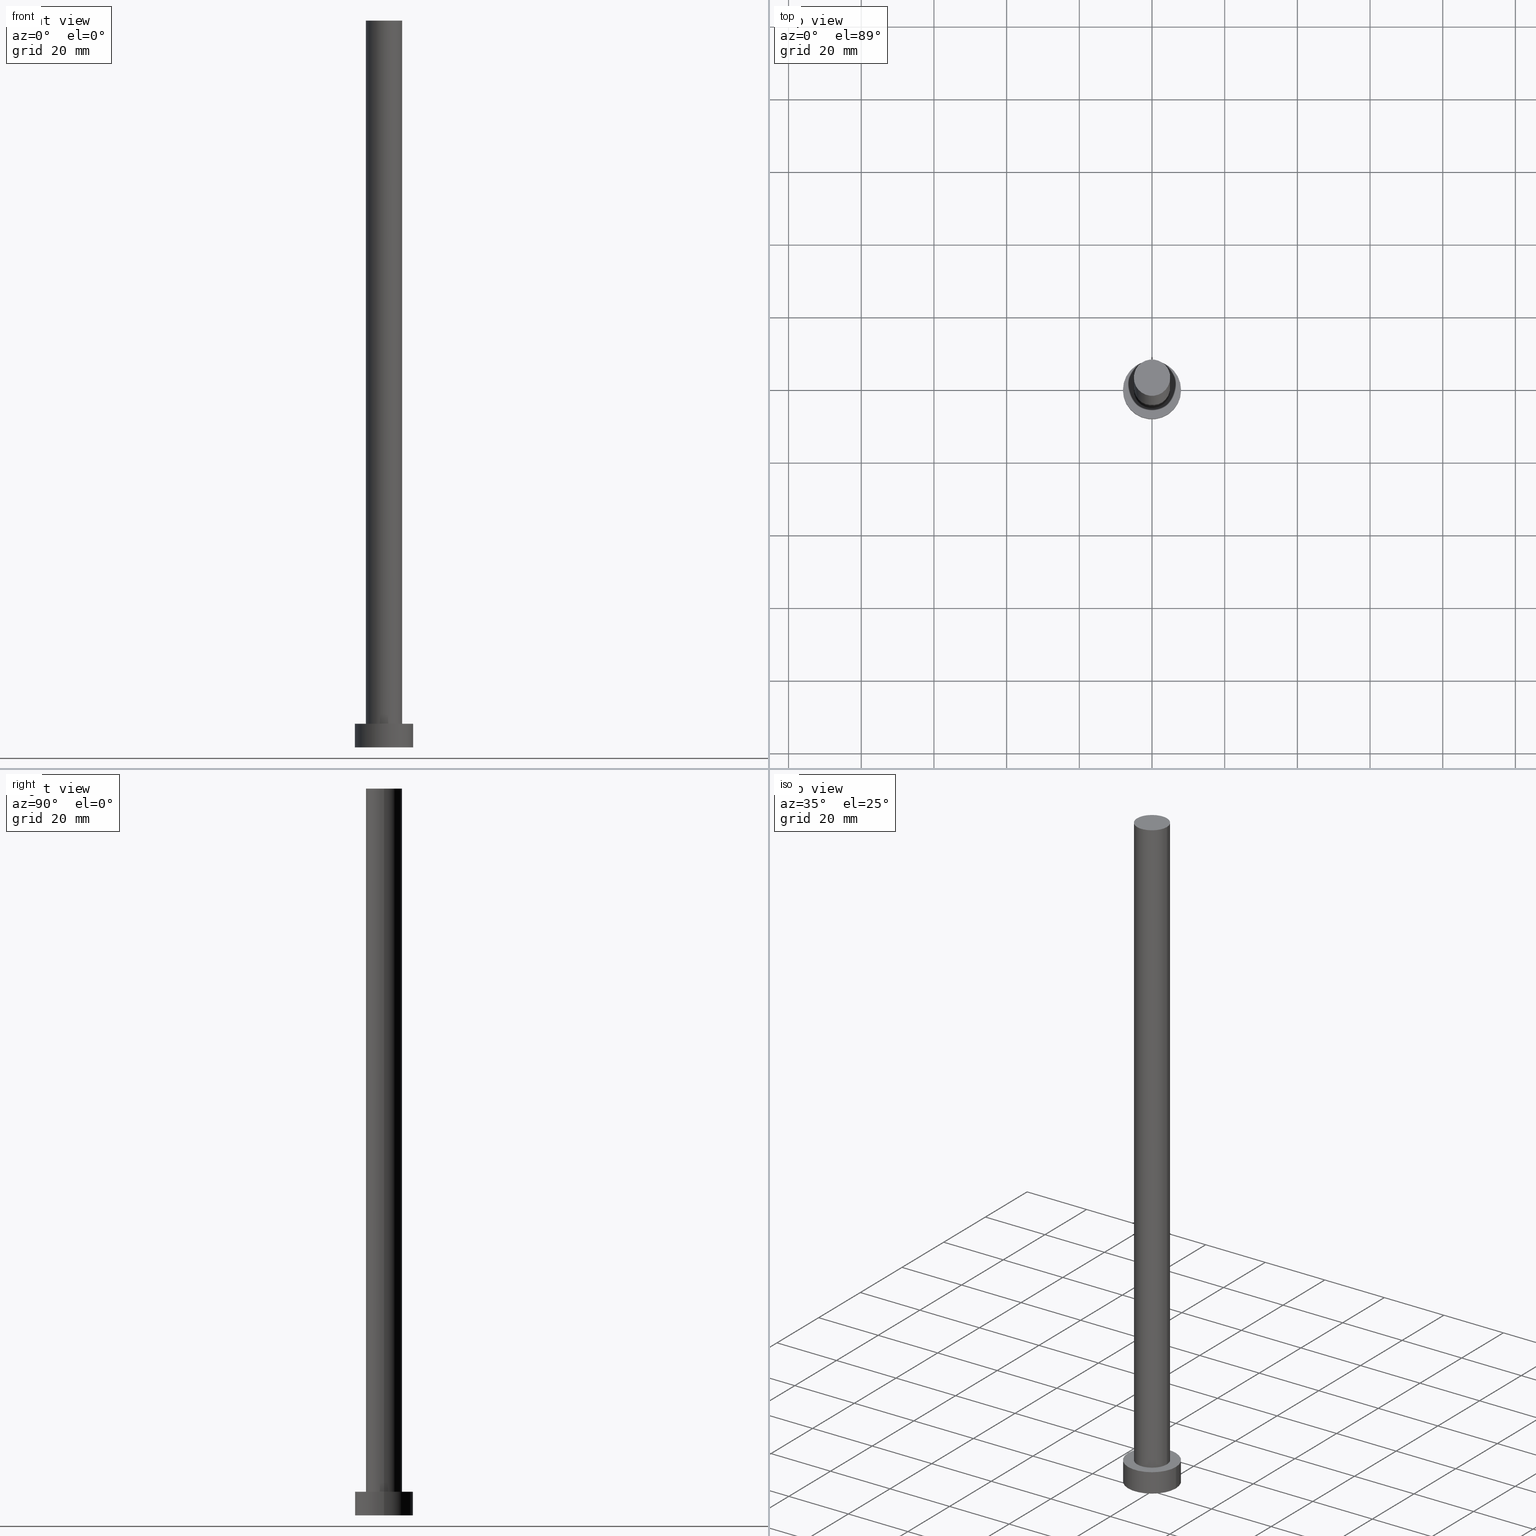
[diagram: canonical four-view strip — front | top / right | iso, engineering-drawing reading convention]
A machine part, canonical four-view strip (front | top / right | iso — engineering-drawing reading convention). The complete STEP part file that produces these views, byte-faithful:
ISO-10303-21;
HEADER;
FILE_DESCRIPTION (( 'STEP AP203' ),
    '1' );
FILE_NAME ('220f.STEP',
    '2023-02-13T13:10:08',
    ( '' ),
    ( '' ),
    'SwSTEP 2.0',
    'SolidWorks 2019',
    '' );
FILE_SCHEMA (( 'CONFIG_CONTROL_DESIGN' ));
ENDSEC;

DATA;
#1 = APPLICATION_PROTOCOL_DEFINITION ( 'international standard', 'config_control_design', 1994, #128 ) ;
#2 = VERTEX_POINT ( 'NONE', #132 ) ;
#3 = DIRECTION ( 'NONE',  ( 1.000000000000000000, 0.000000000000000000, 0.000000000000000000 ) ) ;
#4 = CARTESIAN_POINT ( 'NONE',  ( 5.000000000000000888, 6.123233995736767268E-16, 200.0000000000000000 ) ) ;
#5 = CIRCLE ( 'NONE', #201, 8.000000000000000000 ) ;
#6 = VERTEX_POINT ( 'NONE', #18 ) ;
#7 = CARTESIAN_POINT ( 'NONE',  ( 8.000000000000000000, 9.797174393178823685E-16, 6.500000000000000000 ) ) ;
#8 = EDGE_LOOP ( 'NONE', ( #227, #49, #249, #108 ) ) ;
#9 = DATE_AND_TIME ( #248, #191 ) ;
#10 = CARTESIAN_POINT ( 'NONE',  ( 0.000000000000000000, 0.000000000000000000, 6.500000000000000000 ) ) ;
#11 = PERSON_AND_ORGANIZATION ( #87, #92 ) ;
#12 = FACE_OUTER_BOUND ( 'NONE', #38, .T. ) ;
#13 = DIRECTION ( 'NONE',  ( -1.000000000000000000, 0.000000000000000000, 0.000000000000000000 ) ) ;
#14 = DIRECTION ( 'NONE',  ( -0.000000000000000000, -0.000000000000000000, -1.000000000000000000 ) ) ;
#15 = EDGE_CURVE ( 'NONE', #206, #69, #127, .T. ) ;
#16 = LOCAL_TIME ( 14, 10, 8.000000000000000000, #77 ) ;
#17 = ADVANCED_FACE ( 'NONE', ( #172, #111 ), #151, .T. ) ;
#18 = CARTESIAN_POINT ( 'NONE',  ( 8.000000000000000000, 9.797174393178823685E-16, 6.500000000000000000 ) ) ;
#19 = ORIENTED_EDGE ( 'NONE', *, *, #63, .F. ) ;
#20 = SECURITY_CLASSIFICATION_LEVEL ( 'unclassified' ) ;
#21 = CARTESIAN_POINT ( 'NONE',  ( 0.000000000000000000, 0.000000000000000000, 6.500000000000000000 ) ) ;
#22 = ORIENTED_EDGE ( 'NONE', *, *, #55, .T. ) ;
#23 = LINE ( 'NONE', #7, #33 ) ;
#24 = EDGE_CURVE ( 'NONE', #6, #206, #115, .T. ) ;
#25 = CIRCLE ( 'NONE', #169, 5.000000000000000888 ) ;
#26 = ORIENTED_EDGE ( 'NONE', *, *, #36, .F. ) ;
#27 = CALENDAR_DATE ( 2023, 13, 2 ) ;
#28 = EDGE_LOOP ( 'NONE', ( #46, #19, #243, #147 ) ) ;
#29 = CALENDAR_DATE ( 2023, 13, 2 ) ;
#30 = DIRECTION ( 'NONE',  ( 0.000000000000000000, 0.000000000000000000, 1.000000000000000000 ) ) ;
#31 = APPROVAL_DATE_TIME ( #9, #203 ) ;
#32 = DIRECTION ( 'NONE',  ( 1.000000000000000000, 0.000000000000000000, -0.000000000000000000 ) ) ;
#33 = VECTOR ( 'NONE', #71, 1000.000000000000000 ) ;
#34 = APPLICATION_PROTOCOL_DEFINITION ( 'international standard', 'config_control_design', 1994, #101 ) ;
#35 = CYLINDRICAL_SURFACE ( 'NONE', #228, 5.000000000000000888 ) ;
#36 = EDGE_CURVE ( 'NONE', #2, #41, #255, .T. ) ;
#37 = PRODUCT_DEFINITION_FORMATION_WITH_SPECIFIED_SOURCE ( 'LIBOVOLN�', '', #181, .NOT_KNOWN. ) ;
#38 = EDGE_LOOP ( 'NONE', ( #166, #149 ) ) ;
#39 =( GEOMETRIC_REPRESENTATION_CONTEXT ( 3 ) GLOBAL_UNCERTAINTY_ASSIGNED_CONTEXT ( ( #130 ) ) GLOBAL_UNIT_ASSIGNED_CONTEXT ( ( #84, #140, #138 ) ) REPRESENTATION_CONTEXT ( 'NONE', 'WORKASPACE' ) );
#40 = SHAPE_DEFINITION_REPRESENTATION ( #98, #252 ) ;
#41 = VERTEX_POINT ( 'NONE', #171 ) ;
#42 = CC_DESIGN_APPROVAL ( #189, ( #194 ) ) ;
#43 = ORIENTED_EDGE ( 'NONE', *, *, #179, .T. ) ;
#44 = DATE_AND_TIME ( #27, #16 ) ;
#45 = DIRECTION ( 'NONE',  ( 0.000000000000000000, 0.000000000000000000, 1.000000000000000000 ) ) ;
#46 = ORIENTED_EDGE ( 'NONE', *, *, #179, .F. ) ;
#47 = APPROVAL_DATE_TIME ( #253, #189 ) ;
#48 = DIRECTION ( 'NONE',  ( -1.000000000000000000, 0.000000000000000000, 0.000000000000000000 ) ) ;
#49 = ORIENTED_EDGE ( 'NONE', *, *, #68, .F. ) ;
#50 = DESIGN_CONTEXT ( 'detailed design', #128, 'design' ) ;
#51 = PERSON_AND_ORGANIZATION ( #87, #92 ) ;
#52 = VERTEX_POINT ( 'NONE', #66 ) ;
#53 = PLANE ( 'NONE',  #60 ) ;
#54 = FACE_OUTER_BOUND ( 'NONE', #95, .T. ) ;
#55 = EDGE_CURVE ( 'NONE', #52, #186, #25, .T. ) ;
#56 = CYLINDRICAL_SURFACE ( 'NONE', #254, 8.000000000000000000 ) ;
#57 = AXIS2_PLACEMENT_3D ( 'NONE', #110, #157, #150 ) ;
#58 = AXIS2_PLACEMENT_3D ( 'NONE', #200, #14, #232 ) ;
#59 = APPROVAL_STATUS ( 'not_yet_approved' ) ;
#60 = AXIS2_PLACEMENT_3D ( 'NONE', #133, #30, #177 ) ;
#61 = APPROVAL_PERSON_ORGANIZATION ( #240, #189, #144 ) ;
#62 = APPROVAL_STATUS ( 'not_yet_approved' ) ;
#63 = EDGE_CURVE ( 'NONE', #41, #2, #184, .T. ) ;
#64 = CARTESIAN_POINT ( 'NONE',  ( 0.000000000000000000, 0.000000000000000000, 6.500000000000000000 ) ) ;
#65 = DIRECTION ( 'NONE',  ( -0.000000000000000000, -0.000000000000000000, -1.000000000000000000 ) ) ;
#66 = CARTESIAN_POINT ( 'NONE',  ( 5.000000000000000888, 6.123233995736767268E-16, 6.500000000000000000 ) ) ;
#67 = CC_DESIGN_APPROVAL ( #203, ( #37 ) ) ;
#68 = EDGE_CURVE ( 'NONE', #206, #6, #214, .T. ) ;
#69 = VERTEX_POINT ( 'NONE', #76 ) ;
#70 = ORIENTED_EDGE ( 'NONE', *, *, #220, .T. ) ;
#71 = DIRECTION ( 'NONE',  ( -0.000000000000000000, -0.000000000000000000, -1.000000000000000000 ) ) ;
#72 = ORIENTED_EDGE ( 'NONE', *, *, #146, .T. ) ;
#73 = PERSON_AND_ORGANIZATION_ROLE ( 'creator' ) ;
#74 = CARTESIAN_POINT ( 'NONE',  ( 0.000000000000000000, 0.000000000000000000, 6.500000000000000000 ) ) ;
#75 = AXIS2_PLACEMENT_3D ( 'NONE', #21, #178, #188 ) ;
#76 = CARTESIAN_POINT ( 'NONE',  ( -8.000000000000000000, 0.000000000000000000, 0.000000000000000000 ) ) ;
#77 = COORDINATED_UNIVERSAL_TIME_OFFSET ( 1, 0, .AHEAD. ) ;
#78 = ADVANCED_FACE ( 'NONE', ( #116 ), #56, .T. ) ;
#79 = CYLINDRICAL_SURFACE ( 'NONE', #175, 8.000000000000000000 ) ;
#80 = AXIS2_PLACEMENT_3D ( 'NONE', #93, #131, #3 ) ;
#81 = LOCAL_TIME ( 14, 10, 8.000000000000000000, #237 ) ;
#82 = EDGE_CURVE ( 'NONE', #41, #186, #97, .T. ) ;
#83 = VECTOR ( 'NONE', #205, 1000.000000000000000 ) ;
#84 =( LENGTH_UNIT ( ) NAMED_UNIT ( * ) SI_UNIT ( .MILLI., .METRE. ) );
#85 = ADVANCED_FACE ( 'NONE', ( #230 ), #53, .T. ) ;
#86 = CIRCLE ( 'NONE', #75, 5.000000000000000888 ) ;
#87 = PERSON ( 'NEUR�EN�', 'NEUR�EN�', 'NEUR�EN�', ('NEUR�EN�'), ('NEUR�EN�'), ('NEUR�EN�') ) ;
#88 = ORIENTED_EDGE ( 'NONE', *, *, #24, .F. ) ;
#89 = DIRECTION ( 'NONE',  ( 0.000000000000000000, 0.000000000000000000, 1.000000000000000000 ) ) ;
#90 = COORDINATED_UNIVERSAL_TIME_OFFSET ( 1, 0, .AHEAD. ) ;
#91 = EDGE_LOOP ( 'NONE', ( #202, #129 ) ) ;
#92 = ORGANIZATION ( 'NEUR�EN�', 'NEUR�EN�', '' ) ;
#93 = CARTESIAN_POINT ( 'NONE',  ( 0.000000000000000000, 0.000000000000000000, 6.500000000000000000 ) ) ;
#94 = PLANE ( 'NONE',  #183 ) ;
#95 = EDGE_LOOP ( 'NONE', ( #88, #70, #72, #190 ) ) ;
#96 = DATE_TIME_ROLE ( 'creation_date' ) ;
#97 = LINE ( 'NONE', #174, #182 ) ;
#98 = PRODUCT_DEFINITION_SHAPE ( 'NONE', 'NONE',  #194 ) ;
#99 = CLOSED_SHELL ( 'NONE', ( #250, #211, #78, #17, #231, #120, #85 ) ) ;
#100 = CC_DESIGN_SECURITY_CLASSIFICATION ( #163, ( #37 ) ) ;
#101 = APPLICATION_CONTEXT ( 'configuration controlled 3d designs of mechanical parts and assemblies' ) ;
#102 = DATE_AND_TIME ( #238, #81 ) ;
#103 = CC_DESIGN_PERSON_AND_ORGANIZATION_ASSIGNMENT ( #113, #195, ( #163 ) ) ;
#104 = PERSON_AND_ORGANIZATION ( #87, #92 ) ;
#105 = LOCAL_TIME ( 14, 10, 8.000000000000000000, #90 ) ;
#106 = DIRECTION ( 'NONE',  ( 1.000000000000000000, 0.000000000000000000, 0.000000000000000000 ) ) ;
#107 = DATE_AND_TIME ( #167, #105 ) ;
#108 = ORIENTED_EDGE ( 'NONE', *, *, #217, .T. ) ;
#109 = CARTESIAN_POINT ( 'NONE',  ( 0.000000000000000000, 0.000000000000000000, 200.0000000000000000 ) ) ;
#110 = CARTESIAN_POINT ( 'NONE',  ( 0.000000000000000000, 0.000000000000000000, 0.000000000000000000 ) ) ;
#111 = FACE_OUTER_BOUND ( 'NONE', #91, .T. ) ;
#112 = CARTESIAN_POINT ( 'NONE',  ( -8.000000000000000000, 0.000000000000000000, 6.500000000000000000 ) ) ;
#113 = PERSON_AND_ORGANIZATION ( #87, #92 ) ;
#114 = FACE_OUTER_BOUND ( 'NONE', #247, .T. ) ;
#115 = CIRCLE ( 'NONE', #80, 8.000000000000000000 ) ;
#116 = FACE_OUTER_BOUND ( 'NONE', #8, .T. ) ;
#117 = CARTESIAN_POINT ( 'NONE',  ( 0.000000000000000000, 0.000000000000000000, 6.500000000000000000 ) ) ;
#118 = APPROVAL_PERSON_ORGANIZATION ( #119, #239, #185 ) ;
#119 = PERSON_AND_ORGANIZATION ( #87, #92 ) ;
#120 = ADVANCED_FACE ( 'NONE', ( #180 ), #35, .T. ) ;
#121 = DIRECTION ( 'NONE',  ( 1.000000000000000000, 0.000000000000000000, 0.000000000000000000 ) ) ;
#122 = VERTEX_POINT ( 'NONE', #176 ) ;
#123 = CIRCLE ( 'NONE', #57, 8.000000000000000000 ) ;
#124 = ORIENTED_EDGE ( 'NONE', *, *, #55, .F. ) ;
#125 = VECTOR ( 'NONE', #246, 1000.000000000000000 ) ;
#126 = CARTESIAN_POINT ( 'NONE',  ( 0.000000000000000000, 0.000000000000000000, 0.000000000000000000 ) ) ;
#127 = LINE ( 'NONE', #245, #83 ) ;
#128 = APPLICATION_CONTEXT ( 'configuration controlled 3d designs of mechanical parts and assemblies' ) ;
#129 = ORIENTED_EDGE ( 'NONE', *, *, #24, .T. ) ;
#130 = UNCERTAINTY_MEASURE_WITH_UNIT (LENGTH_MEASURE( 1.000000000000000082E-05 ), #84, 'distance_accuracy_value', 'NONE');
#131 = DIRECTION ( 'NONE',  ( 0.000000000000000000, 0.000000000000000000, 1.000000000000000000 ) ) ;
#132 = CARTESIAN_POINT ( 'NONE',  ( 5.000000000000000888, 6.123233995736767268E-16, 200.0000000000000000 ) ) ;
#133 = CARTESIAN_POINT ( 'NONE',  ( 0.000000000000000000, 0.000000000000000000, 200.0000000000000000 ) ) ;
#134 = APPROVAL_ROLE ( '' ) ;
#135 = MANIFOLD_SOLID_BREP ( 'P�idat vysunut�m3', #99 ) ;
#136 = CARTESIAN_POINT ( 'NONE',  ( 0.000000000000000000, 0.000000000000000000, 0.000000000000000000 ) ) ;
#137 = EDGE_CURVE ( 'NONE', #186, #52, #86, .T. ) ;
#138 =( NAMED_UNIT ( * ) SI_UNIT ( $, .STERADIAN. ) SOLID_ANGLE_UNIT ( ) );
#139 = DATE_TIME_ROLE ( 'classification_date' ) ;
#140 =( NAMED_UNIT ( * ) PLANE_ANGLE_UNIT ( ) SI_UNIT ( $, .RADIAN. ) );
#141 = COORDINATED_UNIVERSAL_TIME_OFFSET ( 1, 0, .AHEAD. ) ;
#142 = DIRECTION ( 'NONE',  ( 1.000000000000000000, 0.000000000000000000, 0.000000000000000000 ) ) ;
#143 = MECHANICAL_CONTEXT ( 'NONE', #101, 'mechanical' ) ;
#144 = APPROVAL_ROLE ( '' ) ;
#145 = DIRECTION ( 'NONE',  ( 0.000000000000000000, 0.000000000000000000, 1.000000000000000000 ) ) ;
#146 = EDGE_CURVE ( 'NONE', #122, #69, #123, .T. ) ;
#147 = ORIENTED_EDGE ( 'NONE', *, *, #137, .T. ) ;
#148 = AXIS2_PLACEMENT_3D ( 'NONE', #109, #192, #121 ) ;
#149 = ORIENTED_EDGE ( 'NONE', *, *, #146, .F. ) ;
#150 = DIRECTION ( 'NONE',  ( 1.000000000000000000, 0.000000000000000000, 0.000000000000000000 ) ) ;
#151 = PLANE ( 'NONE',  #219 ) ;
#152 = PERSON_AND_ORGANIZATION ( #87, #92 ) ;
#153 = ORIENTED_EDGE ( 'NONE', *, *, #63, .T. ) ;
#154 = CARTESIAN_POINT ( 'NONE',  ( 0.000000000000000000, 0.000000000000000000, 0.000000000000000000 ) ) ;
#155 = APPROVAL_STATUS ( 'not_yet_approved' ) ;
#156 = DIRECTION ( 'NONE',  ( -1.000000000000000000, 0.000000000000000000, 0.000000000000000000 ) ) ;
#157 = DIRECTION ( 'NONE',  ( 0.000000000000000000, 0.000000000000000000, 1.000000000000000000 ) ) ;
#158 = CC_DESIGN_PERSON_AND_ORGANIZATION_ASSIGNMENT ( #51, #251, ( #37 ) ) ;
#159 = LOCAL_TIME ( 14, 10, 8.000000000000000000, #141 ) ;
#160 = APPROVAL_DATE_TIME ( #102, #239 ) ;
#161 = DIRECTION ( 'NONE',  ( 0.000000000000000000, 0.000000000000000000, 1.000000000000000000 ) ) ;
#162 = AXIS2_PLACEMENT_3D ( 'NONE', #204, #89, #106 ) ;
#163 = SECURITY_CLASSIFICATION ( '', '', #20 ) ;
#164 = PERSON_AND_ORGANIZATION_ROLE ( 'design_owner' ) ;
#165 = CC_DESIGN_PERSON_AND_ORGANIZATION_ASSIGNMENT ( #11, #212, ( #37 ) ) ;
#166 = ORIENTED_EDGE ( 'NONE', *, *, #217, .F. ) ;
#167 = CALENDAR_DATE ( 2023, 13, 2 ) ;
#168 = DIRECTION ( 'NONE',  ( 0.000000000000000000, 0.000000000000000000, 1.000000000000000000 ) ) ;
#169 = AXIS2_PLACEMENT_3D ( 'NONE', #187, #168, #208 ) ;
#170 = CC_DESIGN_DATE_AND_TIME_ASSIGNMENT ( #107, #139, ( #163 ) ) ;
#171 = CARTESIAN_POINT ( 'NONE',  ( -5.000000000000000888, 0.000000000000000000, 200.0000000000000000 ) ) ;
#172 = FACE_BOUND ( 'NONE', #222, .T. ) ;
#173 = LINE ( 'NONE', #4, #125 ) ;
#174 = CARTESIAN_POINT ( 'NONE',  ( -5.000000000000000888, 0.000000000000000000, 200.0000000000000000 ) ) ;
#175 = AXIS2_PLACEMENT_3D ( 'NONE', #74, #226, #48 ) ;
#176 = CARTESIAN_POINT ( 'NONE',  ( 8.000000000000000000, 9.797174393178823685E-16, 0.000000000000000000 ) ) ;
#177 = DIRECTION ( 'NONE',  ( 1.000000000000000000, 0.000000000000000000, -0.000000000000000000 ) ) ;
#178 = DIRECTION ( 'NONE',  ( 0.000000000000000000, 0.000000000000000000, 1.000000000000000000 ) ) ;
#179 = EDGE_CURVE ( 'NONE', #2, #52, #173, .T. ) ;
#180 = FACE_OUTER_BOUND ( 'NONE', #28, .T. ) ;
#181 = PRODUCT ( '220f', '220f', '', ( #143 ) ) ;
#182 = VECTOR ( 'NONE', #198, 1000.000000000000000 ) ;
#183 = AXIS2_PLACEMENT_3D ( 'NONE', #136, #213, #32 ) ;
#184 = CIRCLE ( 'NONE', #148, 5.000000000000000888 ) ;
#185 = APPROVAL_ROLE ( '' ) ;
#186 = VERTEX_POINT ( 'NONE', #223 ) ;
#187 = CARTESIAN_POINT ( 'NONE',  ( 0.000000000000000000, 0.000000000000000000, 6.500000000000000000 ) ) ;
#188 = DIRECTION ( 'NONE',  ( 1.000000000000000000, 0.000000000000000000, 0.000000000000000000 ) ) ;
#189 = APPROVAL ( #62, 'NEUR�EN�' ) ;
#190 = ORIENTED_EDGE ( 'NONE', *, *, #15, .F. ) ;
#191 = LOCAL_TIME ( 14, 10, 8.000000000000000000, #193 ) ;
#192 = DIRECTION ( 'NONE',  ( 0.000000000000000000, 0.000000000000000000, 1.000000000000000000 ) ) ;
#193 = COORDINATED_UNIVERSAL_TIME_OFFSET ( 1, 0, .AHEAD. ) ;
#194 = PRODUCT_DEFINITION ( 'NEZN�M�', '', #37, #50 ) ;
#195 = PERSON_AND_ORGANIZATION_ROLE ( 'classification_officer' ) ;
#196 = APPROVAL_PERSON_ORGANIZATION ( #225, #203, #134 ) ;
#197 = CYLINDRICAL_SURFACE ( 'NONE', #58, 5.000000000000000888 ) ;
#198 = DIRECTION ( 'NONE',  ( -0.000000000000000000, -0.000000000000000000, -1.000000000000000000 ) ) ;
#199 = PRODUCT_RELATED_PRODUCT_CATEGORY ( 'detail', '', ( #181 ) ) ;
#200 = CARTESIAN_POINT ( 'NONE',  ( 0.000000000000000000, 0.000000000000000000, 200.0000000000000000 ) ) ;
#201 = AXIS2_PLACEMENT_3D ( 'NONE', #154, #45, #207 ) ;
#202 = ORIENTED_EDGE ( 'NONE', *, *, #68, .T. ) ;
#203 = APPROVAL ( #155, 'NEUR�EN�' ) ;
#204 = CARTESIAN_POINT ( 'NONE',  ( 0.000000000000000000, 0.000000000000000000, 200.0000000000000000 ) ) ;
#205 = DIRECTION ( 'NONE',  ( -0.000000000000000000, -0.000000000000000000, -1.000000000000000000 ) ) ;
#206 = VERTEX_POINT ( 'NONE', #112 ) ;
#207 = DIRECTION ( 'NONE',  ( 1.000000000000000000, 0.000000000000000000, 0.000000000000000000 ) ) ;
#208 = DIRECTION ( 'NONE',  ( 1.000000000000000000, 0.000000000000000000, 0.000000000000000000 ) ) ;
#209 = CC_DESIGN_APPROVAL ( #239, ( #163 ) ) ;
#210 = EDGE_LOOP ( 'NONE', ( #153, #221 ) ) ;
#211 = ADVANCED_FACE ( 'NONE', ( #54 ), #79, .T. ) ;
#212 = PERSON_AND_ORGANIZATION_ROLE ( 'design_supplier' ) ;
#213 = DIRECTION ( 'NONE',  ( 0.000000000000000000, 0.000000000000000000, 1.000000000000000000 ) ) ;
#214 = CIRCLE ( 'NONE', #244, 8.000000000000000000 ) ;
#215 = DIRECTION ( 'NONE',  ( -0.000000000000000000, -0.000000000000000000, -1.000000000000000000 ) ) ;
#216 = CC_DESIGN_PERSON_AND_ORGANIZATION_ASSIGNMENT ( #152, #73, ( #194 ) ) ;
#217 = EDGE_CURVE ( 'NONE', #69, #122, #5, .T. ) ;
#218 = DIRECTION ( 'NONE',  ( 1.000000000000000000, 0.000000000000000000, -0.000000000000000000 ) ) ;
#219 = AXIS2_PLACEMENT_3D ( 'NONE', #64, #145, #218 ) ;
#220 = EDGE_CURVE ( 'NONE', #6, #122, #23, .T. ) ;
#221 = ORIENTED_EDGE ( 'NONE', *, *, #36, .T. ) ;
#222 = EDGE_LOOP ( 'NONE', ( #241, #124 ) ) ;
#223 = CARTESIAN_POINT ( 'NONE',  ( -5.000000000000000888, 0.000000000000000000, 6.500000000000000000 ) ) ;
#224 = ORIENTED_EDGE ( 'NONE', *, *, #82, .F. ) ;
#225 = PERSON_AND_ORGANIZATION ( #87, #92 ) ;
#226 = DIRECTION ( 'NONE',  ( -0.000000000000000000, -0.000000000000000000, -1.000000000000000000 ) ) ;
#227 = ORIENTED_EDGE ( 'NONE', *, *, #220, .F. ) ;
#228 = AXIS2_PLACEMENT_3D ( 'NONE', #242, #65, #156 ) ;
#229 = CC_DESIGN_PERSON_AND_ORGANIZATION_ASSIGNMENT ( #104, #164, ( #181 ) ) ;
#230 = FACE_OUTER_BOUND ( 'NONE', #210, .T. ) ;
#231 = ADVANCED_FACE ( 'NONE', ( #12 ), #94, .F. ) ;
#232 = DIRECTION ( 'NONE',  ( -1.000000000000000000, 0.000000000000000000, 0.000000000000000000 ) ) ;
#233 = AXIS2_PLACEMENT_3D ( 'NONE', #126, #161, #235 ) ;
#234 = CC_DESIGN_DATE_AND_TIME_ASSIGNMENT ( #44, #96, ( #194 ) ) ;
#235 = DIRECTION ( 'NONE',  ( 1.000000000000000000, 0.000000000000000000, 0.000000000000000000 ) ) ;
#236 = DIRECTION ( 'NONE',  ( 0.000000000000000000, 0.000000000000000000, 1.000000000000000000 ) ) ;
#237 = COORDINATED_UNIVERSAL_TIME_OFFSET ( 1, 0, .AHEAD. ) ;
#238 = CALENDAR_DATE ( 2023, 13, 2 ) ;
#239 = APPROVAL ( #59, 'NEUR�EN�' ) ;
#240 = PERSON_AND_ORGANIZATION ( #87, #92 ) ;
#241 = ORIENTED_EDGE ( 'NONE', *, *, #137, .F. ) ;
#242 = CARTESIAN_POINT ( 'NONE',  ( 0.000000000000000000, 0.000000000000000000, 200.0000000000000000 ) ) ;
#243 = ORIENTED_EDGE ( 'NONE', *, *, #82, .T. ) ;
#244 = AXIS2_PLACEMENT_3D ( 'NONE', #117, #236, #142 ) ;
#245 = CARTESIAN_POINT ( 'NONE',  ( -8.000000000000000000, 0.000000000000000000, 6.500000000000000000 ) ) ;
#246 = DIRECTION ( 'NONE',  ( -0.000000000000000000, -0.000000000000000000, -1.000000000000000000 ) ) ;
#247 = EDGE_LOOP ( 'NONE', ( #26, #43, #22, #224 ) ) ;
#248 = CALENDAR_DATE ( 2023, 13, 2 ) ;
#249 = ORIENTED_EDGE ( 'NONE', *, *, #15, .T. ) ;
#250 = ADVANCED_FACE ( 'NONE', ( #114 ), #197, .T. ) ;
#251 = PERSON_AND_ORGANIZATION_ROLE ( 'creator' ) ;
#252 = ADVANCED_BREP_SHAPE_REPRESENTATION ( '220f', ( #135, #233 ), #39 ) ;
#253 = DATE_AND_TIME ( #29, #159 ) ;
#254 = AXIS2_PLACEMENT_3D ( 'NONE', #10, #215, #13 ) ;
#255 = CIRCLE ( 'NONE', #162, 5.000000000000000888 ) ;
ENDSEC;
END-ISO-10303-21;
